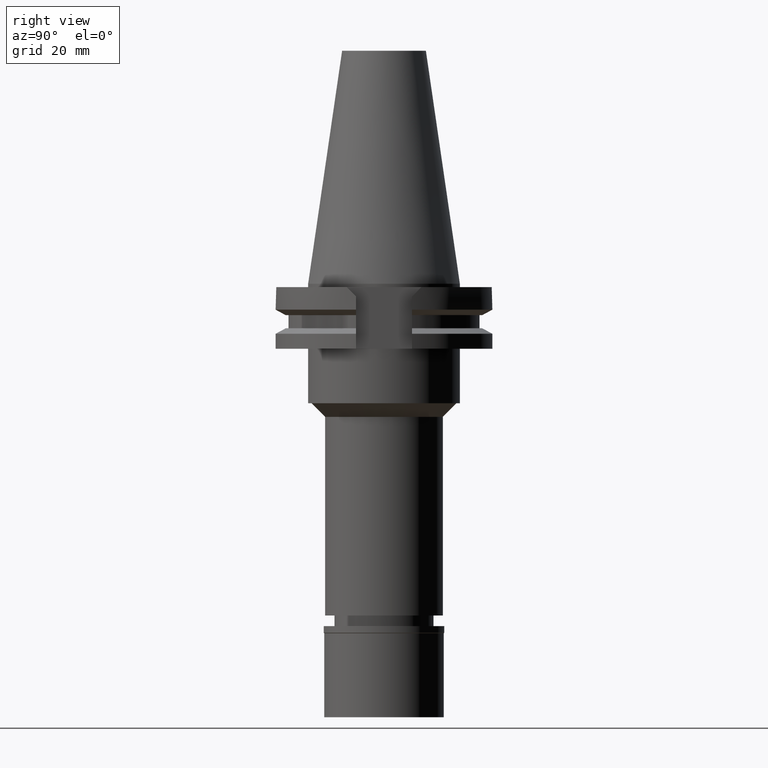
[diagram: clean part render]
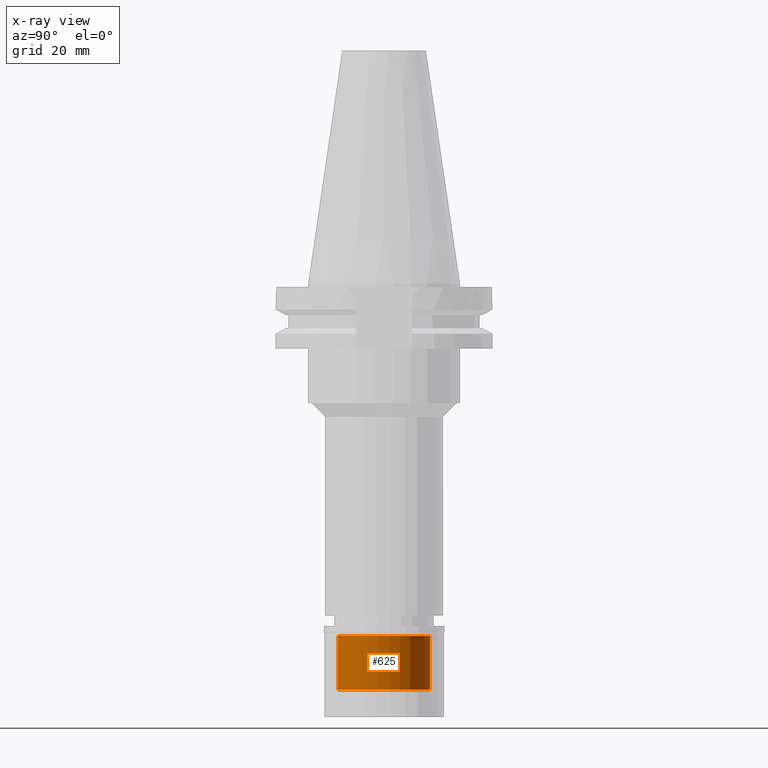
[diagram: x-ray — body ghosted, one internal face saturated and labeled with its STEP entity id]
A machine part, right view, then the same camera in x-ray: the body is ghosted and one INTERNAL B-rep face — a face not visible from any outside direction — is saturated and labeled: STEP entity #625.
In plain terms, the highlighted cylindrical surface (partial cylindrical patch) has radius 13.5 mm, axis along (0, 0, -1).
Its self-contained STEP definition (entity closure, byte-faithful):
#36 = CIRCLE ( 'NONE', #427, 13.50000000000000000 ) ;
#69 = DIRECTION ( 'NONE',  ( 0.0000000000000000000, 0.0000000000000000000, 1.000000000000000000 ) ) ;
#73 = VERTEX_POINT ( 'NONE', #1246 ) ;
#75 = DIRECTION ( 'NONE',  ( 0.0000000000000000000, 0.0000000000000000000, -1.000000000000000000 ) ) ;
#240 = DIRECTION ( 'NONE',  ( 0.0000000000000000000, 1.000000000000000000, 0.0000000000000000000 ) ) ;
#258 = CIRCLE ( 'NONE', #1762, 13.50000000000000000 ) ;
#259 = DIRECTION ( 'NONE',  ( 0.0000000000000000000, 0.0000000000000000000, 1.000000000000000000 ) ) ;
#427 = AXIS2_PLACEMENT_3D ( 'NONE', #2369, #69, #1075 ) ;
#487 = CARTESIAN_POINT ( 'NONE',  ( 0.0000000000000000000, -13.50000000000000000, -2.899999999999999911 ) ) ;
#514 = CARTESIAN_POINT ( 'NONE',  ( 0.0000000000000000000, 13.50000000000000000, -18.70000000000000284 ) ) ;
#625 = ADVANCED_FACE ( 'NONE', ( #1609 ), #2394, .F. ) ;
#725 = DIRECTION ( 'NONE',  ( 0.0000000000000000000, 0.0000000000000000000, -1.000000000000000000 ) ) ;
#887 = AXIS2_PLACEMENT_3D ( 'NONE', #1567, #75, #2122 ) ;
#1019 = CARTESIAN_POINT ( 'NONE',  ( 0.0000000000000000000, 0.0000000000000000000, -18.70000000000000284 ) ) ;
#1022 = EDGE_LOOP ( 'NONE', ( #2724, #2456, #1699, #2377 ) ) ;
#1057 = CARTESIAN_POINT ( 'NONE',  ( 0.0000000000000000000, -13.50000000000000000, -18.70000000000000284 ) ) ;
#1075 = DIRECTION ( 'NONE',  ( 0.0000000000000000000, -1.000000000000000000, 0.0000000000000000000 ) ) ;
#1103 = EDGE_CURVE ( 'NONE', #1496, #2809, #36, .T. ) ;
#1163 = VECTOR ( 'NONE', #1883, 1000.000000000000000 ) ;
#1246 = CARTESIAN_POINT ( 'NONE',  ( 0.0000000000000000000, -13.50000000000000000, -18.70000000000000284 ) ) ;
#1265 = LINE ( 'NONE', #1057, #2737 ) ;
#1407 = EDGE_CURVE ( 'NONE', #1464, #2809, #2471, .T. ) ;
#1464 = VERTEX_POINT ( 'NONE', #514 ) ;
#1496 = VERTEX_POINT ( 'NONE', #487 ) ;
#1567 = CARTESIAN_POINT ( 'NONE',  ( 0.0000000000000000000, 0.0000000000000000000, 0.0000000000000000000 ) ) ;
#1574 = EDGE_CURVE ( 'NONE', #1464, #73, #258, .T. ) ;
#1609 = FACE_OUTER_BOUND ( 'NONE', #1022, .T. ) ;
#1651 = CARTESIAN_POINT ( 'NONE',  ( 0.0000000000000000000, 13.50000000000000000, -18.70000000000000284 ) ) ;
#1699 = ORIENTED_EDGE ( 'NONE', *, *, #1103, .T. ) ;
#1762 = AXIS2_PLACEMENT_3D ( 'NONE', #1019, #725, #240 ) ;
#1883 = DIRECTION ( 'NONE',  ( 0.0000000000000000000, 0.0000000000000000000, 1.000000000000000000 ) ) ;
#2117 = CARTESIAN_POINT ( 'NONE',  ( 0.0000000000000000000, 13.50000000000000000, -2.899999999999999911 ) ) ;
#2122 = DIRECTION ( 'NONE',  ( 0.0000000000000000000, -1.000000000000000000, 0.0000000000000000000 ) ) ;
#2369 = CARTESIAN_POINT ( 'NONE',  ( 0.0000000000000000000, 0.0000000000000000000, -2.899999999999999911 ) ) ;
#2377 = ORIENTED_EDGE ( 'NONE', *, *, #1407, .F. ) ;
#2394 = CYLINDRICAL_SURFACE ( 'NONE', #887, 13.50000000000000000 ) ;
#2456 = ORIENTED_EDGE ( 'NONE', *, *, #3228, .T. ) ;
#2471 = LINE ( 'NONE', #1651, #1163 ) ;
#2724 = ORIENTED_EDGE ( 'NONE', *, *, #1574, .T. ) ;
#2737 = VECTOR ( 'NONE', #259, 1000.000000000000000 ) ;
#2809 = VERTEX_POINT ( 'NONE', #2117 ) ;
#3228 = EDGE_CURVE ( 'NONE', #73, #1496, #1265, .T. ) ;